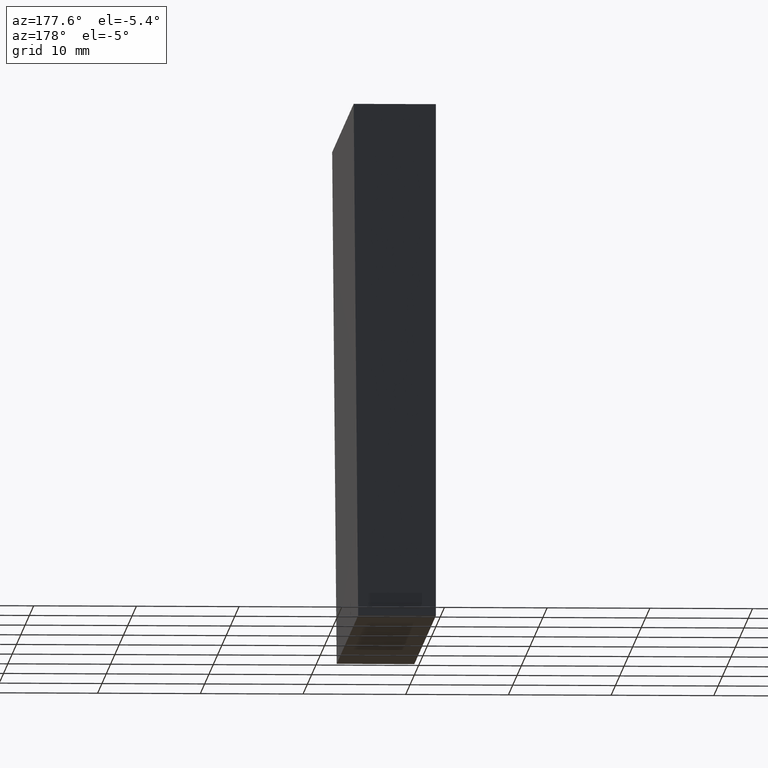
[diagram: clean part render]
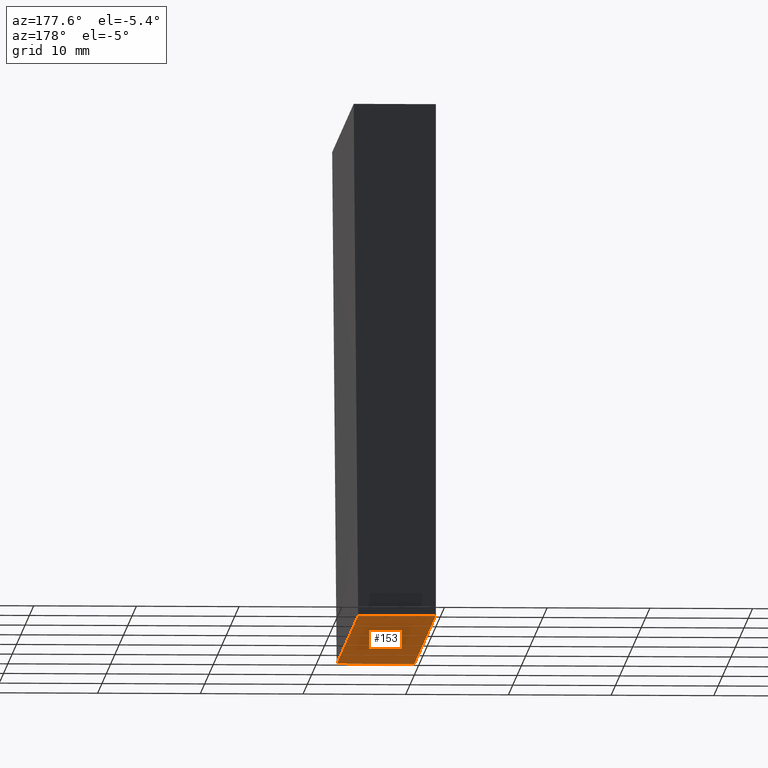
[diagram: same view with one face highlighted and labeled with its STEP entity id]
A machine part, auxiliary view. The second image highlights one B-rep face of the part: STEP entity #153.
In plain terms, the highlighted planar face has unit normal (0, 0, 1).
Its self-contained STEP definition (entity closure, byte-faithful):
#6 = DIRECTION ( 'NONE',  ( -0.0000000000000000000, -1.000000000000000000, -0.0000000000000000000 ) ) ;
#22 = VERTEX_POINT ( 'NONE', #183 ) ;
#29 = CARTESIAN_POINT ( 'NONE',  ( 7.563656610462413900, 50.00000000000000000, -25.00000000000000000 ) ) ;
#31 = CARTESIAN_POINT ( 'NONE',  ( 5.204170427930421300E-015, 50.00000000000000000, -25.00000000000000000 ) ) ;
#34 = LINE ( 'NONE', #157, #189 ) ;
#37 = CARTESIAN_POINT ( 'NONE',  ( 5.204170427930421300E-015, 0.0000000000000000000, -25.00000000000000000 ) ) ;
#38 = EDGE_CURVE ( 'NONE', #58, #154, #109, .T. ) ;
#41 = ORIENTED_EDGE ( 'NONE', *, *, #96, .T. ) ;
#45 = CARTESIAN_POINT ( 'NONE',  ( 7.563656610462413900, 0.0000000000000000000, -25.00000000000000000 ) ) ;
#48 = EDGE_LOOP ( 'NONE', ( #161, #199, #71, #41 ) ) ;
#50 = DIRECTION ( 'NONE',  ( -0.0000000000000000000, -1.000000000000000000, -0.0000000000000000000 ) ) ;
#52 = DIRECTION ( 'NONE',  ( 0.0000000000000000000, 0.0000000000000000000, 1.000000000000000000 ) ) ;
#58 = VERTEX_POINT ( 'NONE', #124 ) ;
#61 = DIRECTION ( 'NONE',  ( -1.000000000000000000, -0.0000000000000000000, -0.0000000000000000000 ) ) ;
#64 = DIRECTION ( 'NONE',  ( -1.000000000000000000, -0.0000000000000000000, -0.0000000000000000000 ) ) ;
#67 = PLANE ( 'NONE',  #171 ) ;
#71 = ORIENTED_EDGE ( 'NONE', *, *, #132, .F. ) ;
#96 = EDGE_CURVE ( 'NONE', #22, #103, #146, .T. ) ;
#103 = VERTEX_POINT ( 'NONE', #45 ) ;
#109 = LINE ( 'NONE', #163, #169 ) ;
#111 = CARTESIAN_POINT ( 'NONE',  ( 5.204170427930421300E-015, 0.0000000000000000000, -25.00000000000000000 ) ) ;
#121 = VECTOR ( 'NONE', #64, 1000.000000000000000 ) ;
#124 = CARTESIAN_POINT ( 'NONE',  ( 5.204170427930421300E-015, 50.00000000000000000, -25.00000000000000000 ) ) ;
#132 = EDGE_CURVE ( 'NONE', #22, #58, #34, .T. ) ;
#140 = EDGE_CURVE ( 'NONE', #103, #154, #192, .T. ) ;
#146 = LINE ( 'NONE', #29, #170 ) ;
#153 = ADVANCED_FACE ( 'NONE', ( #196 ), #67, .F. ) ;
#154 = VERTEX_POINT ( 'NONE', #37 ) ;
#157 = CARTESIAN_POINT ( 'NONE',  ( 5.204170427930421300E-015, 50.00000000000000000, -25.00000000000000000 ) ) ;
#161 = ORIENTED_EDGE ( 'NONE', *, *, #140, .T. ) ;
#163 = CARTESIAN_POINT ( 'NONE',  ( 5.204170427930421300E-015, 50.00000000000000000, -25.00000000000000000 ) ) ;
#166 = DIRECTION ( 'NONE',  ( 1.000000000000000000, 0.0000000000000000000, -0.0000000000000000000 ) ) ;
#169 = VECTOR ( 'NONE', #50, 1000.000000000000000 ) ;
#170 = VECTOR ( 'NONE', #6, 1000.000000000000000 ) ;
#171 = AXIS2_PLACEMENT_3D ( 'NONE', #31, #52, #166 ) ;
#183 = CARTESIAN_POINT ( 'NONE',  ( 7.563656610462413900, 50.00000000000000000, -25.00000000000000000 ) ) ;
#189 = VECTOR ( 'NONE', #61, 1000.000000000000000 ) ;
#192 = LINE ( 'NONE', #111, #121 ) ;
#196 = FACE_OUTER_BOUND ( 'NONE', #48, .T. ) ;
#199 = ORIENTED_EDGE ( 'NONE', *, *, #38, .F. ) ;